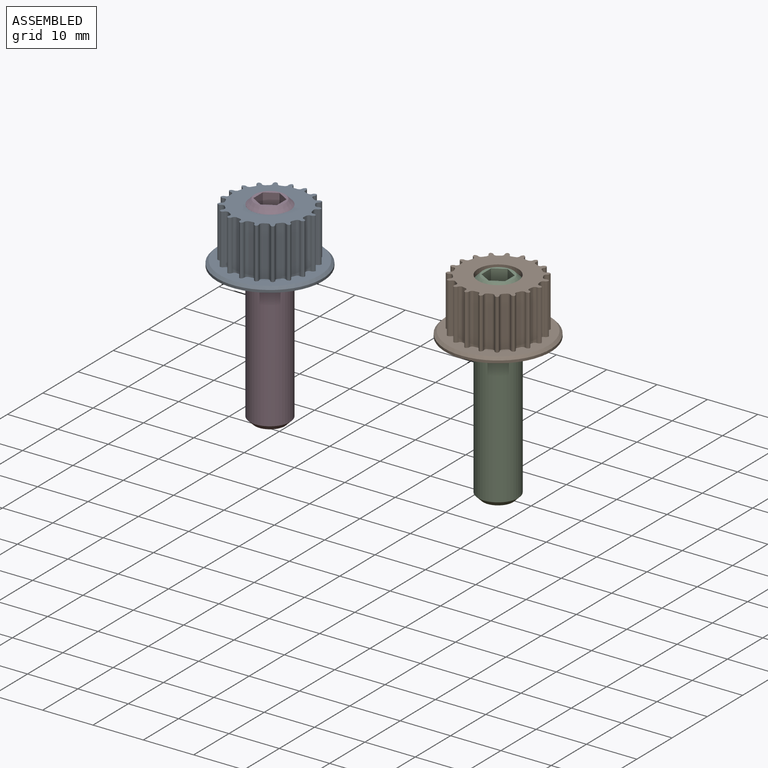
[diagram: assembled view]
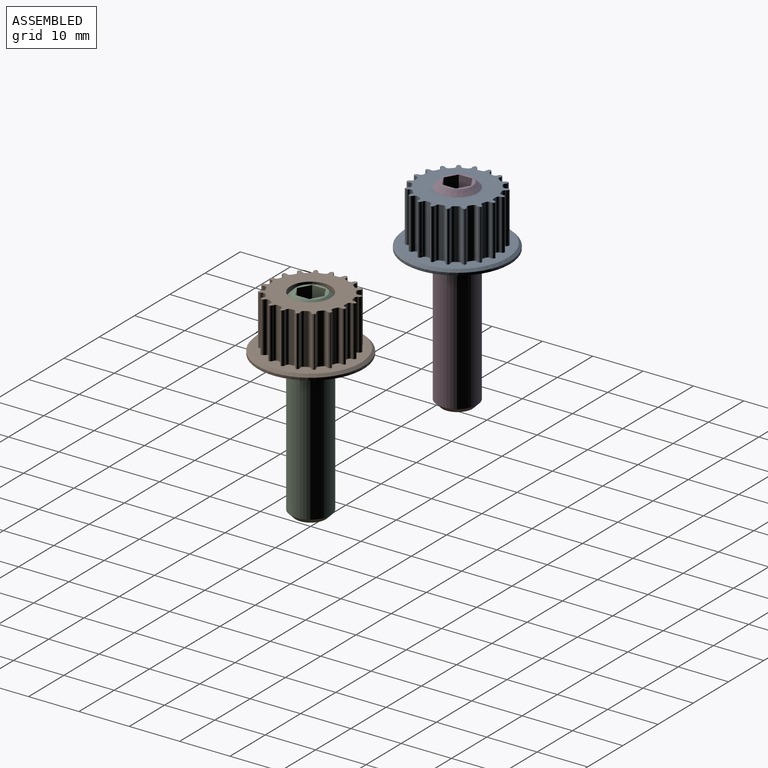
[diagram: assembled view, second angle]
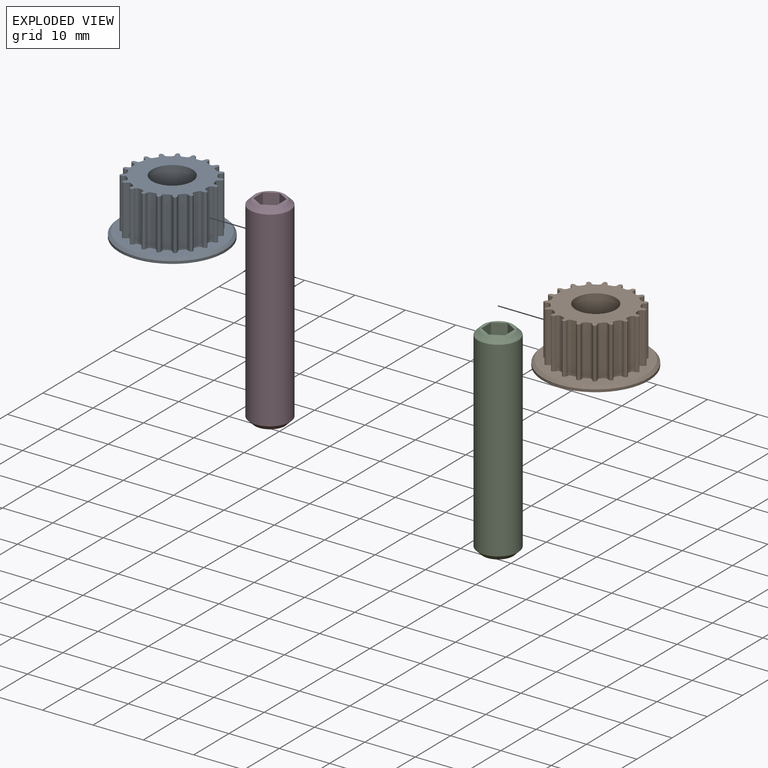
[diagram: exploded view]
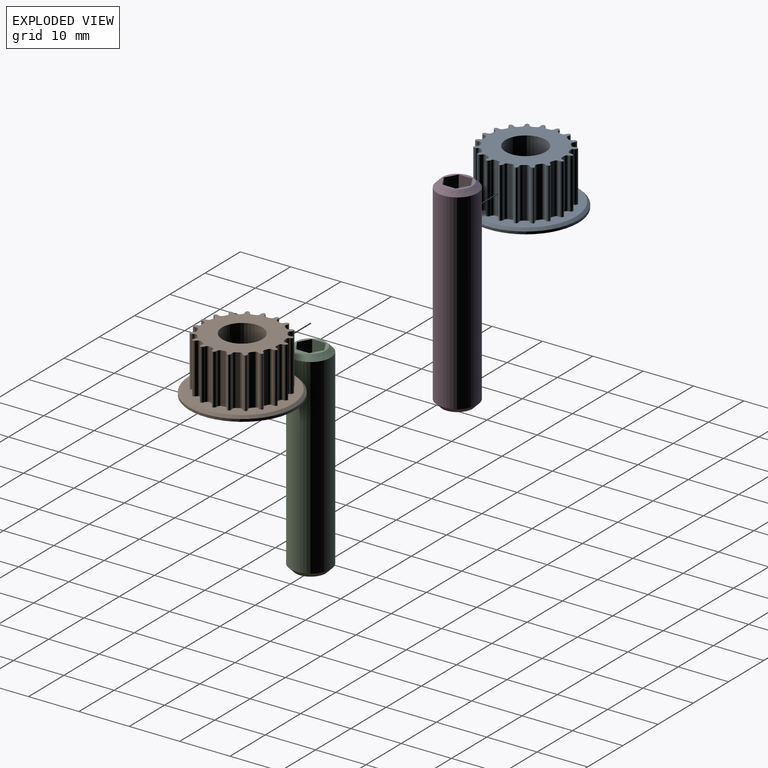
[diagram: exploded view, second angle]
ASSEMBLY  parts=4 mates=2
PART A: 102 faces, bbox 21x21x11 mm
  f0: plane 17.07x17.01mm, normal (0,0,1), area 139.2mm2, adj f1,f3,f4,f5,f6,f7,f8,f9
  f1: cylinder r=4mm len=10mm, axis (0,0,-1), area 251.3mm2, adj f0,f63
  f2: plane 21x21mm, normal (0,0,-1), area 267.8mm2, adj f61,f63
  f3: cylinder r=0.57mm len=10mm, axis (0,0,-1), area 8.5mm2, adj f0,f4,f57,f94
  f4: plane 10x0.66mm, normal (1,0,0), area 6.6mm2, adj f0,f3,f5,f57
  f5: cylinder r=0.57mm len=10mm, axis (0,0,-1), area 8.5mm2, adj f0,f4,f57,f98
  f6: cylinder r=0.57mm len=10mm, axis (0,0,-1), area 8.5mm2, adj f0,f7,f57,f100
  f7: plane 10x0.52mm, normal (0.79,-0.61,0), area 6.6mm2, adj f0,f6,f8,f57
  f8: cylinder r=0.57mm len=10mm, axis (0,0,-1), area 8.5mm2, adj f0,f7,f57,f78
  f9: cylinder r=0.57mm len=10mm, axis (0,0,-1), area 8.5mm2, adj f0,f10,f57,f99
  f10: plane 10x0.62mm, normal (0.95,-0.32,0), area 6.6mm2, adj f0,f9,f11,f57
  f11: cylinder r=0.57mm len=10mm, axis (0,0,-1), area 8.5mm2, adj f0,f10,f57,f101
  f12: cylinder r=0.57mm len=10mm, axis (0,0,-1), area 8.5mm2, adj f0,f13,f57,f96
  f13: plane 10x0.55mm, normal (0.55,0.84,0), area 6.6mm2, adj f0,f12,f14,f57
  f14: cylinder r=0.57mm len=10mm, axis (0,0,-1), area 8.5mm2, adj f0,f13,f57,f90
  f15: cylinder r=0.57mm len=10mm, axis (0,0,-1), area 8.5mm2, adj f0,f16,f57,f84
  f16: plane 10x0.64mm, normal (0.25,0.97,0), area 6.6mm2, adj f0,f15,f17,f57
  f17: cylinder r=0.57mm len=10mm, axis (0,0,-1), area 8.5mm2, adj f0,f16,f57,f97
  f18: cylinder r=0.57mm len=10mm, axis (0,0,-1), area 8.5mm2, adj f0,f19,f57,f92
  f19: plane 10x0.62mm, normal (0.95,0.32,0), area 6.6mm2, adj f0,f18,f20,f57
  f20: cylinder r=0.57mm len=10mm, axis (0,0,-1), area 8.5mm2, adj f0,f19,f57,f95
  f21: cylinder r=0.57mm len=10mm, axis (0,0,-1), area 8.5mm2, adj f0,f22,f57,f91
  f22: plane 10x0.52mm, normal (0.79,0.61,0), area 6.6mm2, adj f0,f21,f23,f57
  f23: cylinder r=0.57mm len=10mm, axis (0,0,-1), area 8.5mm2, adj f0,f22,f57,f93
  f24: cylinder r=0.57mm len=10mm, axis (0,0,-1), area 8.5mm2, adj f0,f25,f57,f88
  f25: plane 10x0.49mm, normal (-0.68,0.74,0), area 6.6mm2, adj f0,f24,f26,f57
  f26: cylinder r=0.57mm len=10mm, axis (0,0,-1), area 8.5mm2, adj f0,f25,f57,f86
  f27: cylinder r=0.57mm len=10mm, axis (0,0,-1), area 8.5mm2, adj f0,f28,f57,f66
  f28: plane 10x0.58mm, normal (-0.88,0.48,0), area 6.6mm2, adj f0,f27,f29,f57
  f29: cylinder r=0.57mm len=10mm, axis (0,0,-1), area 8.5mm2, adj f0,f28,f57,f89
  f30: cylinder r=0.57mm len=10mm, axis (0,0,-1), area 8.5mm2, adj f0,f31,f57,f87
  f31: plane 10x0.6mm, normal (-0.4,0.92,0), area 6.6mm2, adj f0,f30,f32,f57
  f32: cylinder r=0.57mm len=10mm, axis (0,0,-1), area 8.5mm2, adj f0,f31,f57,f82
  f33: cylinder r=0.57mm len=10mm, axis (0,0,-1), area 8.5mm2, adj f0,f34,f57,f83
  f34: plane 10x0.66mm, normal (-0.08,1,0), area 6.6mm2, adj f0,f33,f35,f57
  f35: cylinder r=0.57mm len=10mm, axis (0,0,-1), area 8.5mm2, adj f0,f34,f57,f85
  f36: cylinder r=0.57mm len=10mm, axis (0,0,-1), area 8.5mm2, adj f0,f37,f57,f80
  f37: plane 10x0.64mm, normal (0.25,-0.97,0), area 6.6mm2, adj f0,f36,f38,f57
  f38: cylinder r=0.57mm len=10mm, axis (0,0,-1), area 8.5mm2, adj f0,f37,f57,f76
  f39: cylinder r=0.57mm len=10mm, axis (0,0,-1), area 8.5mm2, adj f0,f40,f57,f79
  f40: plane 10x0.55mm, normal (0.55,-0.84,0), area 6.6mm2, adj f0,f39,f41,f57
  f41: cylinder r=0.57mm len=10mm, axis (0,0,-1), area 8.5mm2, adj f0,f40,f57,f81
  f42: cylinder r=0.57mm len=10mm, axis (0,0,-1), area 8.5mm2, adj f0,f43,f57,f77
  f43: plane 10x0.66mm, normal (-0.08,-1,0), area 6.6mm2, adj f0,f42,f44,f57
  f44: cylinder r=0.57mm len=10mm, axis (0,0,-1), area 8.5mm2, adj f0,f43,f57,f74
  f45: cylinder r=0.57mm len=10mm, axis (0,0,-1), area 8.5mm2, adj f0,f46,f57,f75
  f46: plane 10x0.6mm, normal (-0.4,-0.92,0), area 6.6mm2, adj f0,f45,f47,f57
  f47: cylinder r=0.57mm len=10mm, axis (0,0,-1), area 8.5mm2, adj f0,f46,f57,f70
  f48: cylinder r=0.57mm len=10mm, axis (0,0,-1), area 8.5mm2, adj f0,f49,f57,f72
  f49: plane 10x0.58mm, normal (-0.88,-0.48,0), area 6.6mm2, adj f0,f48,f50,f57
  f50: cylinder r=0.57mm len=10mm, axis (0,0,-1), area 8.5mm2, adj f0,f49,f57,f68
  f51: cylinder r=0.57mm len=10mm, axis (0,0,-1), area 8.5mm2, adj f0,f52,f57,f71
  f52: plane 10x0.49mm, normal (-0.68,-0.74,0), area 6.6mm2, adj f0,f51,f53,f57
  f53: cylinder r=0.57mm len=10mm, axis (0,0,-1), area 8.5mm2, adj f0,f52,f57,f73
  f54: cylinder r=0.57mm len=10mm, axis (0,0,-1), area 8.5mm2, adj f0,f55,f57,f69
  f55: plane 10x0.65mm, normal (-0.99,-0.16,0), area 6.6mm2, adj f0,f54,f56,f57
  f56: cylinder r=0.57mm len=10mm, axis (0,0,-1), area 8.5mm2, adj f0,f55,f57,f64
  f57: plane 20x20mm, normal (0,0,1), area 124.7mm2, adj f3,f4,f5,f6,f7,f8,f9,f10
  f58: cylinder r=0.57mm len=10mm, axis (0,0,-1), area 8.5mm2, adj f0,f57,f59,f65
  f59: plane 10x0.65mm, normal (-0.99,0.16,0), area 6.6mm2, adj f0,f57,f58,f60
  f60: cylinder r=0.57mm len=10mm, axis (0,0,-1), area 8.5mm2, adj f0,f57,f59,f67
  f61: cylinder r=10.5mm len=21mm, axis (0,0,-1), area 33mm2, adj f2,f62
  f62: cone r=10mm half-angle=45deg, axis (0,0,-1), area 45.5mm2, adj f57,f61
  f63: cone r=5mm half-angle=45deg, axis (0,0,-1), area 40mm2, adj f1,f2
  f64: cylinder r=0.6mm len=10mm, axis (0,0,1), area 8.1mm2, adj f0,f56,f57,f65
  f65: cylinder r=0.6mm len=10mm, axis (0,0,1), area 8.1mm2, adj f0,f57,f58,f64
  f66: cylinder r=0.6mm len=10mm, axis (0,0,1), area 8.1mm2, adj f0,f27,f57,f67
  f67: cylinder r=0.6mm len=10mm, axis (0,0,1), area 8.1mm2, adj f0,f57,f60,f66
  f68: cylinder r=0.6mm len=10mm, axis (0,0,1), area 8.1mm2, adj f0,f50,f57,f69
  f69: cylinder r=0.6mm len=10mm, axis (0,0,1), area 8.1mm2, adj f0,f54,f57,f68
  f70: cylinder r=0.6mm len=10mm, axis (0,0,1), area 8.1mm2, adj f0,f47,f57,f71
  f71: cylinder r=0.6mm len=10mm, axis (0,0,1), area 8.1mm2, adj f0,f51,f57,f70
  f72: cylinder r=0.6mm len=10mm, axis (0,0,1), area 8.1mm2, adj f0,f48,f57,f73
  f73: cylinder r=0.6mm len=10mm, axis (0,0,1), area 8.1mm2, adj f0,f53,f57,f72
  f74: cylinder r=0.6mm len=10mm, axis (0,0,1), area 8.1mm2, adj f0,f44,f57,f75
  f75: cylinder r=0.6mm len=10mm, axis (0,0,1), area 8.1mm2, adj f0,f45,f57,f74
  f76: cylinder r=0.6mm len=10mm, axis (0,0,1), area 8.1mm2, adj f0,f38,f57,f77
  f77: cylinder r=0.6mm len=10mm, axis (0,0,1), area 8.1mm2, adj f0,f42,f57,f76
  f78: cylinder r=0.6mm len=10mm, axis (0,0,1), area 8.1mm2, adj f0,f8,f57,f79
  f79: cylinder r=0.6mm len=10mm, axis (0,0,1), area 8.1mm2, adj f0,f39,f57,f78
  f80: cylinder r=0.6mm len=10mm, axis (0,0,1), area 8.1mm2, adj f0,f36,f57,f81
  f81: cylinder r=0.6mm len=10mm, axis (0,0,1), area 8.1mm2, adj f0,f41,f57,f80
  f82: cylinder r=0.6mm len=10mm, axis (0,0,1), area 8.1mm2, adj f0,f32,f57,f83
  f83: cylinder r=0.6mm len=10mm, axis (0,0,1), area 8.1mm2, adj f0,f33,f57,f82
  f84: cylinder r=0.6mm len=10mm, axis (0,0,1), area 8.1mm2, adj f0,f15,f57,f85
  f85: cylinder r=0.6mm len=10mm, axis (0,0,1), area 8.1mm2, adj f0,f35,f57,f84
  f86: cylinder r=0.6mm len=10mm, axis (0,0,1), area 8.1mm2, adj f0,f26,f57,f87
  f87: cylinder r=0.6mm len=10mm, axis (0,0,1), area 8.1mm2, adj f0,f30,f57,f86
  f88: cylinder r=0.6mm len=10mm, axis (0,0,1), area 8.1mm2, adj f0,f24,f57,f89
  f89: cylinder r=0.6mm len=10mm, axis (0,0,1), area 8.1mm2, adj f0,f29,f57,f88
  f90: cylinder r=0.6mm len=10mm, axis (0,0,1), area 8.1mm2, adj f0,f14,f57,f91
  f91: cylinder r=0.6mm len=10mm, axis (0,0,1), area 8.1mm2, adj f0,f21,f57,f90
  f92: cylinder r=0.6mm len=10mm, axis (0,0,1), area 8.1mm2, adj f0,f18,f57,f93
  f93: cylinder r=0.6mm len=10mm, axis (0,0,1), area 8.1mm2, adj f0,f23,f57,f92
  f94: cylinder r=0.6mm len=10mm, axis (0,0,1), area 8.1mm2, adj f0,f3,f57,f95
  f95: cylinder r=0.6mm len=10mm, axis (0,0,1), area 8.1mm2, adj f0,f20,f57,f94
  f96: cylinder r=0.6mm len=10mm, axis (0,0,1), area 8.1mm2, adj f0,f12,f57,f97
  f97: cylinder r=0.6mm len=10mm, axis (0,0,1), area 8.1mm2, adj f0,f17,f57,f96
  f98: cylinder r=0.6mm len=10mm, axis (0,0,1), area 8.1mm2, adj f0,f5,f57,f99
  f99: cylinder r=0.6mm len=10mm, axis (0,0,1), area 8.1mm2, adj f0,f9,f57,f98
  f100: cylinder r=0.6mm len=10mm, axis (0,0,1), area 8.1mm2, adj f0,f6,f57,f101
  f101: cylinder r=0.6mm len=10mm, axis (0,0,1), area 8.1mm2, adj f0,f11,f57,f100
PART B: same geometry as A
PART C: 12 faces, bbox 8x8x40 mm
  f0: plane 5x2.35mm, normal (-0.5,-0.87,0), area 13.6mm2, adj f1,f6,f7,f11
  f1: plane 5x2.71mm, normal (-1,0,0), area 13.6mm2, adj f0,f2,f7,f11
  f2: plane 5x2.35mm, normal (-0.5,0.87,0), area 13.6mm2, adj f1,f3,f7,f11
  f3: plane 5x2.35mm, normal (0.5,0.87,0), area 13.6mm2, adj f2,f4,f7,f11
  f4: plane 5x2.71mm, normal (1,0,0), area 13.6mm2, adj f3,f6,f7,f11
  f5: cylinder r=4mm len=38mm, axis (0,0,-1), area 955mm2, adj f9,f10
  f6: plane 5x2.35mm, normal (0.5,-0.87,0), area 13.6mm2, adj f0,f4,f7,f11
  f7: plane 6x6mm, normal (0,0,1), area 9.2mm2, adj f0,f1,f2,f3,f4,f6,f9
  f8: plane 6x6mm, normal (0,0,-1), area 28.3mm2, adj f10
  f9: cone r=3mm half-angle=45deg, axis (0,0,-1), area 31.1mm2, adj f5,f7
  f10: cone r=4mm half-angle=45deg, axis (0,0,1), area 31.1mm2, adj f5,f8
  f11: plane 5.43x4.7mm, normal (0,0,1), area 19.1mm2, adj f0,f1,f2,f3,f4,f6
PART D: same geometry as C
PLACE A rot(axis=(0,0,-1),156deg) t=(-78.67,-27.31,8.29)mm
PLACE B rot(axis=(0,0,1),48deg) t=(44.53,31.97,6.76)mm
PLACE C t=(11.1,-5.21,-9.24)mm fixed
PLACE D t=(-33,-6.96,-6.71)mm fixed
MATE revolute A.f1 <-> D.f5  axis (0,0,-1) through (-33,-6.96,32.29)mm
MATE revolute B.f1 <-> C.f5  axis (0,0,-1) through (11.1,-5.21,30.76)mm
